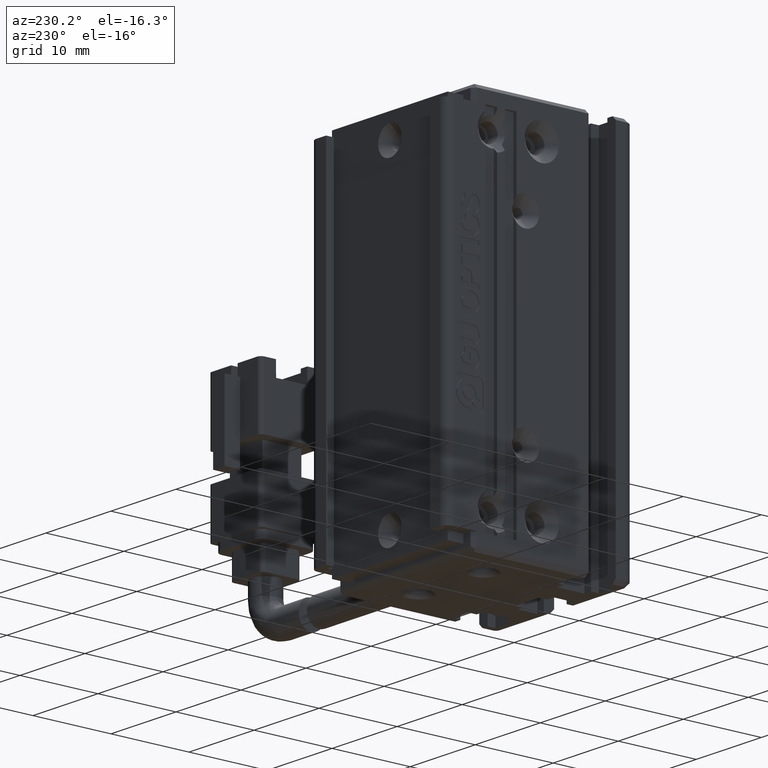
[diagram: clean part render]
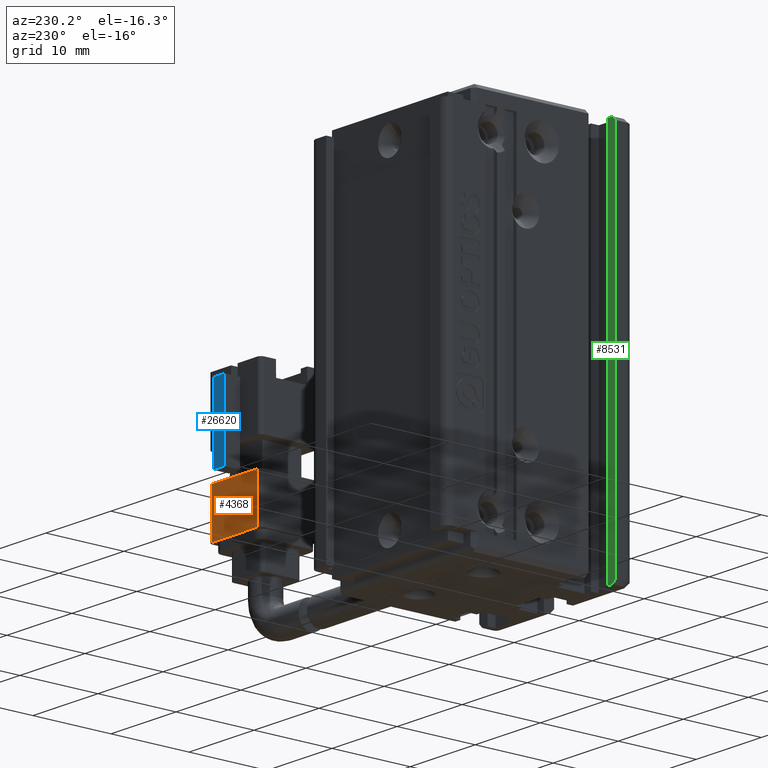
[diagram: same view with three faces highlighted in distinct colors, each labeled with its STEP entity id]
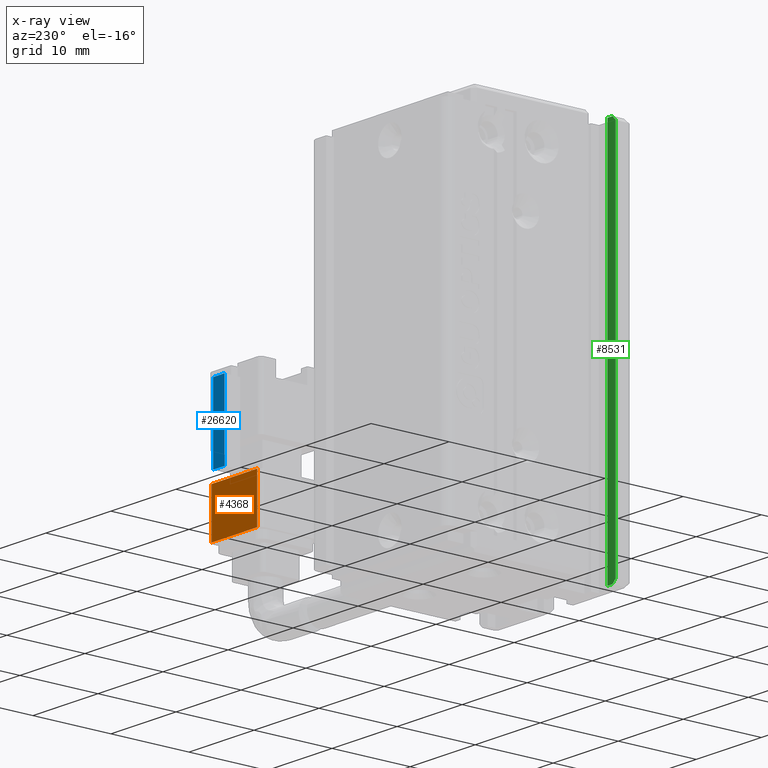
[diagram: x-ray of the same camera — body ghosted, the three highlighted faces saturated]
A machine part, auxiliary view with three faces highlighted in distinct colors.
The next image is the same camera in x-ray (body ghosted, the three faces saturated) — at least one of them is partly hidden behind the body in this view.
Their STEP definitions:

[orange] entity #4368 — the highlighted planar face has unit normal (0, -1, 0).
#394 = CARTESIAN_POINT ( 'NONE',  ( 70.92537974683534700, 25.49073232304857200, -120.4500000000000000 ) ) ;
#1103 = VERTEX_POINT ( 'NONE', #10843 ) ;
#3097 = EDGE_CURVE ( 'NONE', #1103, #30462, #36667, .T. ) ;
#4368 = ADVANCED_FACE ( 'NONE', ( #37886 ), #31596, .F. ) ;
#4385 = DIRECTION ( 'NONE',  ( 3.304235192336770000E-015, -1.000000000000000000, 5.551115123125780200E-017 ) ) ;
#4589 = EDGE_CURVE ( 'NONE', #11018, #1103, #22460, .T. ) ;
#4867 = VECTOR ( 'NONE', #37865, 1000.000000000000000 ) ;
#4990 = DIRECTION ( 'NONE',  ( 1.041348031262155300E-030, -5.551115123125780200E-017, -1.000000000000000000 ) ) ;
#5001 = CARTESIAN_POINT ( 'NONE',  ( 77.92537974683534700, 25.49073232304859700, -126.4500000000000000 ) ) ;
#6542 = VECTOR ( 'NONE', #4990, 1000.000000000000000 ) ;
#8078 = CARTESIAN_POINT ( 'NONE',  ( 70.92537974683534700, 25.49073232304857200, -126.4500000000000000 ) ) ;
#8096 = VERTEX_POINT ( 'NONE', #18659 ) ;
#8985 = ORIENTED_EDGE ( 'NONE', *, *, #3097, .F. ) ;
#10843 = CARTESIAN_POINT ( 'NONE',  ( 70.92537974683534700, 25.49073232304857200, -126.4500000000000000 ) ) ;
#11018 = VERTEX_POINT ( 'NONE', #394 ) ;
#14772 = DIRECTION ( 'NONE',  ( -1.000000000000000000, -3.304235192336770000E-015, -8.579261317967046800E-031 ) ) ;
#16560 = ORIENTED_EDGE ( 'NONE', *, *, #18698, .F. ) ;
#16596 = LINE ( 'NONE', #33123, #18046 ) ;
#18046 = VECTOR ( 'NONE', #14772, 1000.000000000000000 ) ;
#18659 = CARTESIAN_POINT ( 'NONE',  ( 77.92537974683534700, 25.49073232304859700, -120.4500000000000000 ) ) ;
#18698 = EDGE_CURVE ( 'NONE', #8096, #11018, #16596, .T. ) ;
#19040 = EDGE_LOOP ( 'NONE', ( #36437, #8985, #29405, #16560 ) ) ;
#19268 = VECTOR ( 'NONE', #32481, 1000.000000000000000 ) ;
#20896 = AXIS2_PLACEMENT_3D ( 'NONE', #22289, #4385, #34620 ) ;
#22289 = CARTESIAN_POINT ( 'NONE',  ( 77.92537974683534700, 25.49073232304859700, -126.4500000000000000 ) ) ;
#22460 = LINE ( 'NONE', #8078, #6542 ) ;
#23704 = CARTESIAN_POINT ( 'NONE',  ( 77.92537974683534700, 25.49073232304859700, -126.4500000000000000 ) ) ;
#27272 = LINE ( 'NONE', #23704, #19268 ) ;
#29405 = ORIENTED_EDGE ( 'NONE', *, *, #4589, .F. ) ;
#30462 = VERTEX_POINT ( 'NONE', #5001 ) ;
#31476 = EDGE_CURVE ( 'NONE', #30462, #8096, #27272, .T. ) ;
#31596 = PLANE ( 'NONE',  #20896 ) ;
#32481 = DIRECTION ( 'NONE',  ( -1.041348031262155300E-030, 5.551115123125780200E-017, 1.000000000000000000 ) ) ;
#33123 = CARTESIAN_POINT ( 'NONE',  ( 70.92537974683534700, 25.49073232304857200, -120.4500000000000000 ) ) ;
#34620 = DIRECTION ( 'NONE',  ( -1.041348031262155300E-030, 5.551115123125780200E-017, 1.000000000000000000 ) ) ;
#36437 = ORIENTED_EDGE ( 'NONE', *, *, #31476, .F. ) ;
#36667 = LINE ( 'NONE', #37509, #4867 ) ;
#37509 = CARTESIAN_POINT ( 'NONE',  ( 77.92537974683534700, 25.49073232304859700, -126.4500000000000000 ) ) ;
#37865 = DIRECTION ( 'NONE',  ( 1.000000000000000000, 3.304235192336770000E-015, 8.579261317967046800E-031 ) ) ;
#37886 = FACE_OUTER_BOUND ( 'NONE', #19040, .T. ) ;

[blue] entity #26620 — the highlighted planar face has unit normal (0, -1, 0).
#2272 = CARTESIAN_POINT ( 'NONE',  ( 73.55037974683534700, 27.49073232304858600, -110.4500000000000000 ) ) ;
#2429 = CARTESIAN_POINT ( 'NONE',  ( 73.55037974683534700, 27.49073232304858600, -110.4500000000000000 ) ) ;
#2547 = VECTOR ( 'NONE', #24993, 1000.000000000000000 ) ;
#3076 = VECTOR ( 'NONE', #15544, 1000.000000000000000 ) ;
#3195 = ORIENTED_EDGE ( 'NONE', *, *, #24908, .F. ) ;
#7565 = CARTESIAN_POINT ( 'NONE',  ( 75.30037974683534700, 27.49073232304859000, -110.4500000000000000 ) ) ;
#7648 = LINE ( 'NONE', #9784, #2547 ) ;
#8146 = DIRECTION ( 'NONE',  ( -1.644709542661664400E-030, 2.381136223867111700E-016, 1.000000000000000000 ) ) ;
#8225 = ORIENTED_EDGE ( 'NONE', *, *, #36216, .F. ) ;
#8353 = ORIENTED_EDGE ( 'NONE', *, *, #34447, .T. ) ;
#9784 = CARTESIAN_POINT ( 'NONE',  ( 73.55037974683534700, 27.49073232304858600, -119.9500000000000000 ) ) ;
#10562 = EDGE_LOOP ( 'NONE', ( #8353, #3195, #8225, #16032 ) ) ;
#11097 = VERTEX_POINT ( 'NONE', #24983 ) ;
#11921 = CARTESIAN_POINT ( 'NONE',  ( 75.30037974683534700, 27.49073232304859000, -119.9500000000000000 ) ) ;
#13750 = DIRECTION ( 'NONE',  ( 3.304235192336770000E-015, -1.000000000000000000, 2.381136223867111700E-016 ) ) ;
#13878 = VECTOR ( 'NONE', #28266, 1000.000000000000000 ) ;
#13956 = FACE_OUTER_BOUND ( 'NONE', #10562, .T. ) ;
#13963 = LINE ( 'NONE', #7565, #20575 ) ;
#14016 = PLANE ( 'NONE',  #20591 ) ;
#15544 = DIRECTION ( 'NONE',  ( 1.041348031262155300E-030, -5.551115123125780200E-017, -1.000000000000000000 ) ) ;
#16032 = ORIENTED_EDGE ( 'NONE', *, *, #17802, .T. ) ;
#17614 = VERTEX_POINT ( 'NONE', #33254 ) ;
#17802 = EDGE_CURVE ( 'NONE', #17614, #35424, #13963, .T. ) ;
#18564 = CARTESIAN_POINT ( 'NONE',  ( 73.55037974683534700, 27.49073232304858600, -110.4500000000000000 ) ) ;
#19466 = CARTESIAN_POINT ( 'NONE',  ( 73.55037974683534700, 27.49073232304858600, -110.4500000000000000 ) ) ;
#20575 = VECTOR ( 'NONE', #34173, 1000.000000000000000 ) ;
#20591 = AXIS2_PLACEMENT_3D ( 'NONE', #2272, #13750, #8146 ) ;
#21039 = VERTEX_POINT ( 'NONE', #2429 ) ;
#22816 = LINE ( 'NONE', #19466, #13878 ) ;
#24908 = EDGE_CURVE ( 'NONE', #21039, #11097, #26466, .T. ) ;
#24983 = CARTESIAN_POINT ( 'NONE',  ( 73.55037974683534700, 27.49073232304858600, -119.9500000000000000 ) ) ;
#24993 = DIRECTION ( 'NONE',  ( -1.000000000000000000, -3.304235192336770000E-015, -8.579261317967046800E-031 ) ) ;
#26466 = LINE ( 'NONE', #18564, #3076 ) ;
#26620 = ADVANCED_FACE ( 'NONE', ( #13956 ), #14016, .F. ) ;
#28266 = DIRECTION ( 'NONE',  ( -1.000000000000000000, -3.304235192336770000E-015, -8.579261317967046800E-031 ) ) ;
#33254 = CARTESIAN_POINT ( 'NONE',  ( 75.30037974683534700, 27.49073232304859000, -110.4500000000000000 ) ) ;
#34173 = DIRECTION ( 'NONE',  ( 1.041348031262155300E-030, -5.551115123125780200E-017, -1.000000000000000000 ) ) ;
#34447 = EDGE_CURVE ( 'NONE', #35424, #11097, #7648, .T. ) ;
#35424 = VERTEX_POINT ( 'NONE', #11921 ) ;
#36216 = EDGE_CURVE ( 'NONE', #17614, #21039, #22816, .T. ) ;

[green] entity #8531 — the highlighted planar face has unit normal (0, -1, 0).
#122 = CARTESIAN_POINT ( 'NONE',  ( 31.72537974683542600, 13.29073232304837200, -91.00000000000000000 ) ) ;
#945 = FACE_OUTER_BOUND ( 'NONE', #21535, .T. ) ;
#1349 = ORIENTED_EDGE ( 'NONE', *, *, #17337, .F. ) ;
#2002 = CARTESIAN_POINT ( 'NONE',  ( 30.42537974683542100, 13.29073232304837200, -138.5000000000000000 ) ) ;
#3893 = CARTESIAN_POINT ( 'NONE',  ( 30.42537974683542100, 13.29073232304837200, -91.00000000000000000 ) ) ;
#4131 = ORIENTED_EDGE ( 'NONE', *, *, #37453, .T. ) ;
#5270 = VECTOR ( 'NONE', #21936, 1000.000000000000000 ) ;
#5607 = CARTESIAN_POINT ( 'NONE',  ( 30.92537974683542100, 13.29073232304837200, -91.00000000000000000 ) ) ;
#5675 = EDGE_CURVE ( 'NONE', #23284, #15064, #31838, .T. ) ;
#5900 = EDGE_CURVE ( 'NONE', #13130, #25037, #10219, .T. ) ;
#8106 = CARTESIAN_POINT ( 'NONE',  ( 30.92537974683542100, 13.29073232304837200, -139.0000000000000000 ) ) ;
#8260 = DIRECTION ( 'NONE',  ( 0.7071067811865462400, 0.0000000000000000000, -0.7071067811865489100 ) ) ;
#8531 = ADVANCED_FACE ( 'NONE', ( #945 ), #14681, .F. ) ;
#9332 = ORIENTED_EDGE ( 'NONE', *, *, #5675, .F. ) ;
#10219 = LINE ( 'NONE', #30199, #29497 ) ;
#12150 = ORIENTED_EDGE ( 'NONE', *, *, #25538, .F. ) ;
#12205 = DIRECTION ( 'NONE',  ( 1.000000000000000000, 0.0000000000000000000, 0.0000000000000000000 ) ) ;
#12798 = VECTOR ( 'NONE', #38488, 1000.000000000000000 ) ;
#13130 = VERTEX_POINT ( 'NONE', #8106 ) ;
#14681 = PLANE ( 'NONE',  #37138 ) ;
#15064 = VERTEX_POINT ( 'NONE', #15666 ) ;
#15666 = CARTESIAN_POINT ( 'NONE',  ( 30.42537974683542100, 13.29073232304837200, -91.50000000000000000 ) ) ;
#17337 = EDGE_CURVE ( 'NONE', #24480, #13130, #30426, .T. ) ;
#18256 = VECTOR ( 'NONE', #26657, 1000.000000000000000 ) ;
#21091 = CARTESIAN_POINT ( 'NONE',  ( 30.92537974683542100, 13.29073232304837200, -91.00000000000000000 ) ) ;
#21535 = EDGE_LOOP ( 'NONE', ( #9332, #35951, #4131, #30746, #1349, #12150 ) ) ;
#21936 = DIRECTION ( 'NONE',  ( 0.0000000000000000000, -0.0000000000000000000, -1.000000000000000000 ) ) ;
#23256 = VERTEX_POINT ( 'NONE', #122 ) ;
#23284 = VERTEX_POINT ( 'NONE', #21091 ) ;
#23611 = DIRECTION ( 'NONE',  ( 0.0000000000000000000, -0.0000000000000000000, -1.000000000000000000 ) ) ;
#24480 = VERTEX_POINT ( 'NONE', #2002 ) ;
#24485 = DIRECTION ( 'NONE',  ( -1.000000000000000000, -0.0000000000000000000, -0.0000000000000000000 ) ) ;
#25037 = VERTEX_POINT ( 'NONE', #34416 ) ;
#25538 = EDGE_CURVE ( 'NONE', #15064, #24480, #31516, .T. ) ;
#26657 = DIRECTION ( 'NONE',  ( -0.7071067811865524600, 0.0000000000000000000, -0.7071067811865426900 ) ) ;
#26892 = DIRECTION ( 'NONE',  ( 0.0000000000000000000, -1.000000000000000000, 0.0000000000000000000 ) ) ;
#27385 = CARTESIAN_POINT ( 'NONE',  ( 40.92537974683542500, 13.29073232304837200, -91.00000000000000000 ) ) ;
#29497 = VECTOR ( 'NONE', #12205, 1000.000000000000000 ) ;
#29532 = CARTESIAN_POINT ( 'NONE',  ( 31.72537974683542600, 13.29073232304837200, -91.00000000000000000 ) ) ;
#30199 = CARTESIAN_POINT ( 'NONE',  ( 40.92537974683542500, 13.29073232304837200, -139.0000000000000000 ) ) ;
#30426 = LINE ( 'NONE', #31729, #36953 ) ;
#30746 = ORIENTED_EDGE ( 'NONE', *, *, #5900, .F. ) ;
#31128 = VECTOR ( 'NONE', #24485, 1000.000000000000000 ) ;
#31516 = LINE ( 'NONE', #3893, #5270 ) ;
#31729 = CARTESIAN_POINT ( 'NONE',  ( 30.42537974683542100, 13.29073232304837200, -138.5000000000000000 ) ) ;
#31838 = LINE ( 'NONE', #5607, #18256 ) ;
#32054 = LINE ( 'NONE', #27385, #31128 ) ;
#32898 = CARTESIAN_POINT ( 'NONE',  ( 40.92537974683542500, 13.29073232304837200, -91.00000000000000000 ) ) ;
#34392 = EDGE_CURVE ( 'NONE', #23256, #23284, #32054, .T. ) ;
#34416 = CARTESIAN_POINT ( 'NONE',  ( 31.72537974683542600, 13.29073232304837200, -139.0000000000000000 ) ) ;
#35951 = ORIENTED_EDGE ( 'NONE', *, *, #34392, .F. ) ;
#36286 = LINE ( 'NONE', #29532, #12798 ) ;
#36953 = VECTOR ( 'NONE', #8260, 999.9999999999998900 ) ;
#37138 = AXIS2_PLACEMENT_3D ( 'NONE', #32898, #26892, #23611 ) ;
#37453 = EDGE_CURVE ( 'NONE', #23256, #25037, #36286, .T. ) ;
#38488 = DIRECTION ( 'NONE',  ( -0.0000000000000000000, -0.0000000000000000000, -1.000000000000000000 ) ) ;